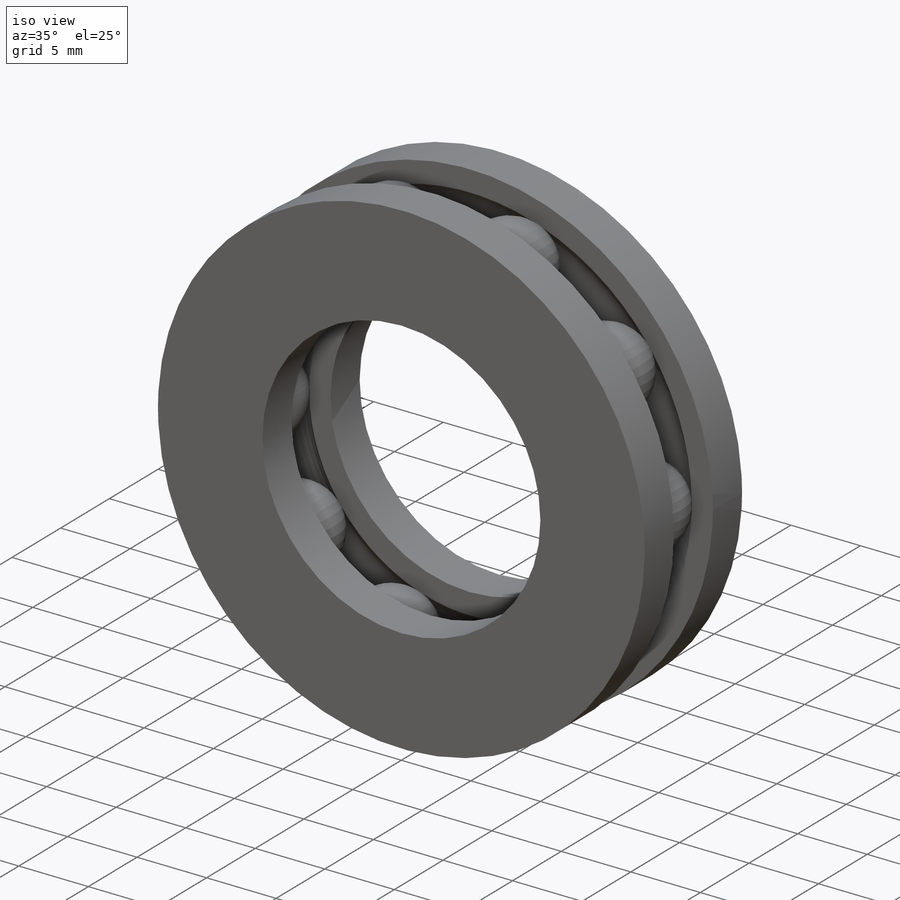
[diagram: iso view]
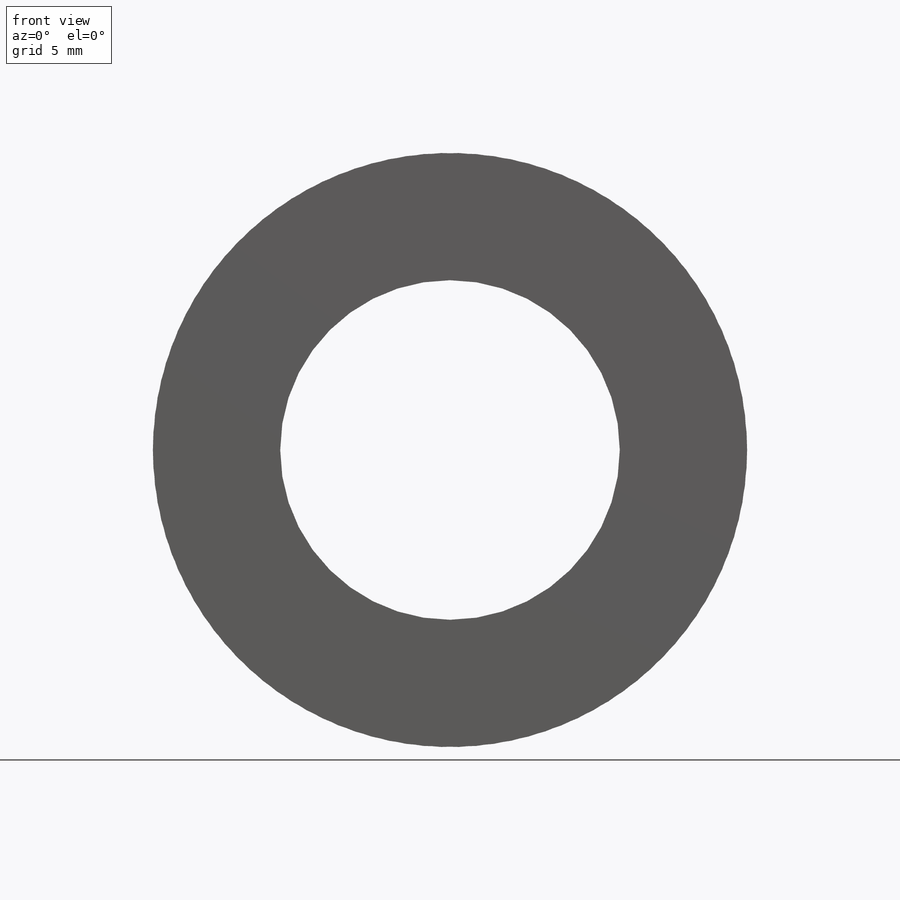
[diagram: front view]
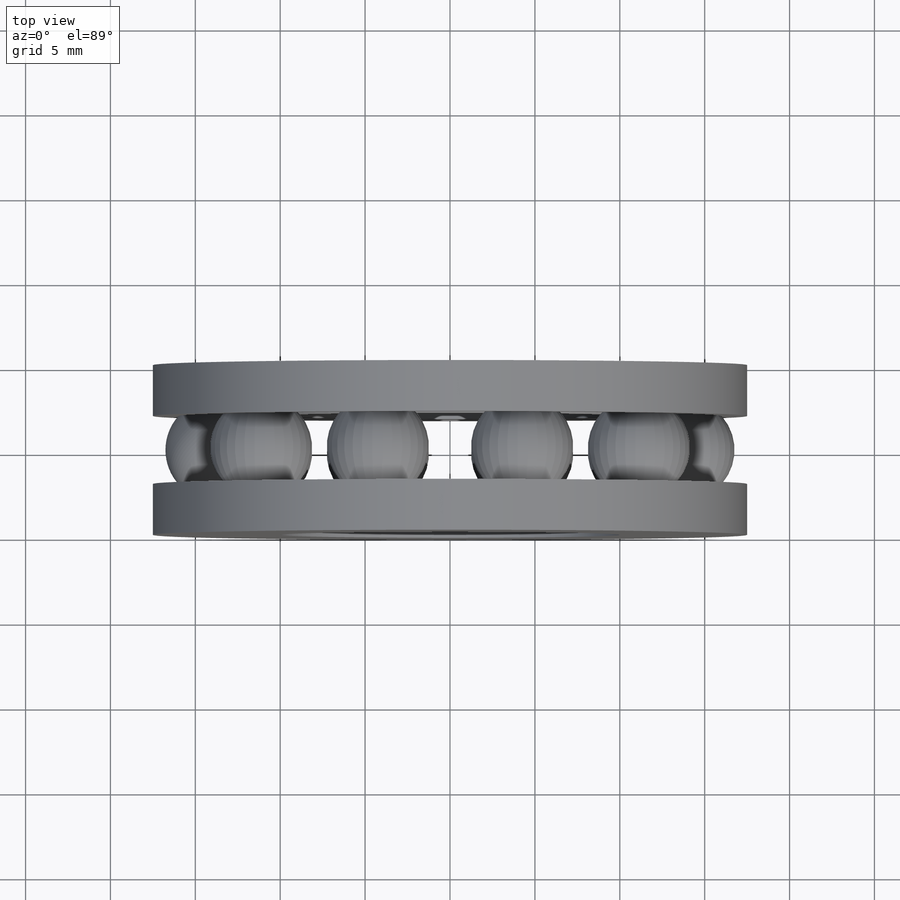
[diagram: top view]
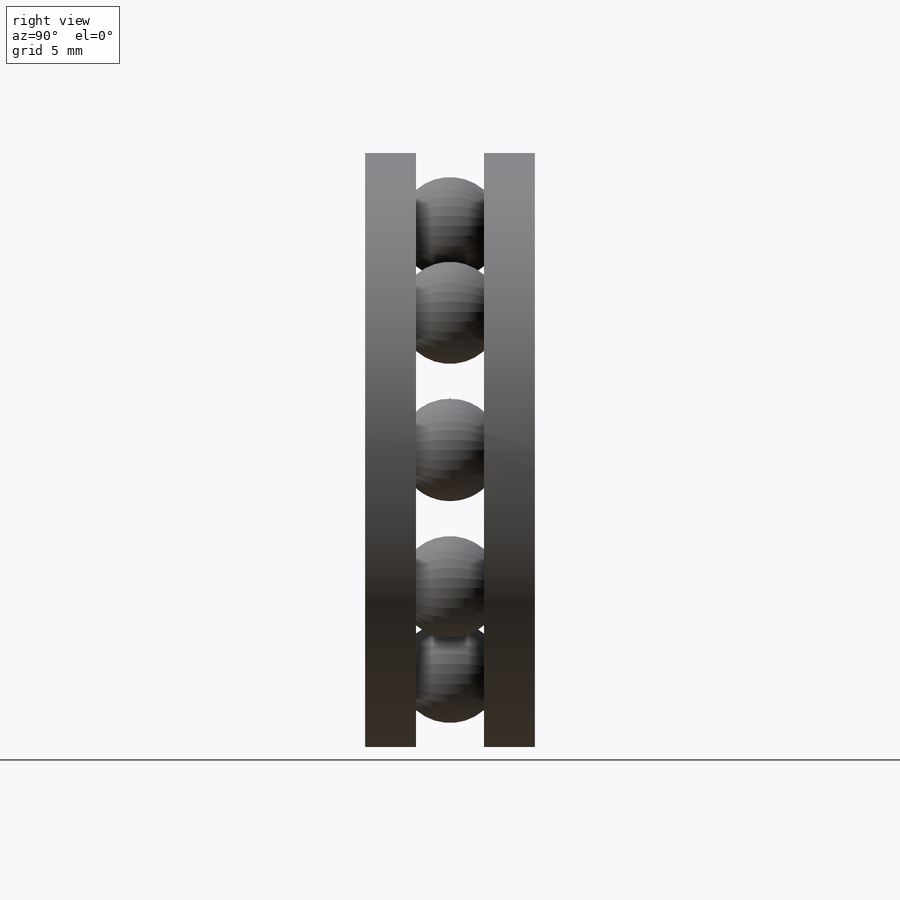
[diagram: right view]
SOLIDWORKS PART (.sldprt)
format: sldprt  version: not decoded by parser v0  size: 493,056 bytes
history: native  units: mm
features: sketch x4, extrude x2, material x1, plane x1, cut_revolve x1, revolve x1, pattern_circular x1 (+13 scaffold rows collapsed)
feature tree (24):
  scaffold x13  (default folders/planes/origin — collapsed)
  material  "AISI 304"
  sketch  "Sketch1"  dims[D1=35.0mm D2=20.0mm]
  extrude  "Boss-Extrude1"  Depth=3mm
  plane  "Plane1"  Offset=10mm
  sketch  "Sketch3"
  extrude  "Boss-Extrude2"  Depth=3mm
  sketch  "Sketch2"  dims[D1=6.0mm D2=13.75mm D3=5.0mm]
  cut_revolve  "Cut-Revolve1"  Angle=360deg
  sketch  "Sketch4"  dims[D2=3.0mm D1=0.0mm]
  revolve  "Revolve1"  Angle=360deg
  pattern_circular  "CirPattern6"  Count=10 Angle=36deg
decode coverage: 8 of 9 modeling features carry decoded parameters
note: suppression state not decoded; provenance and decode notes live in map.json
